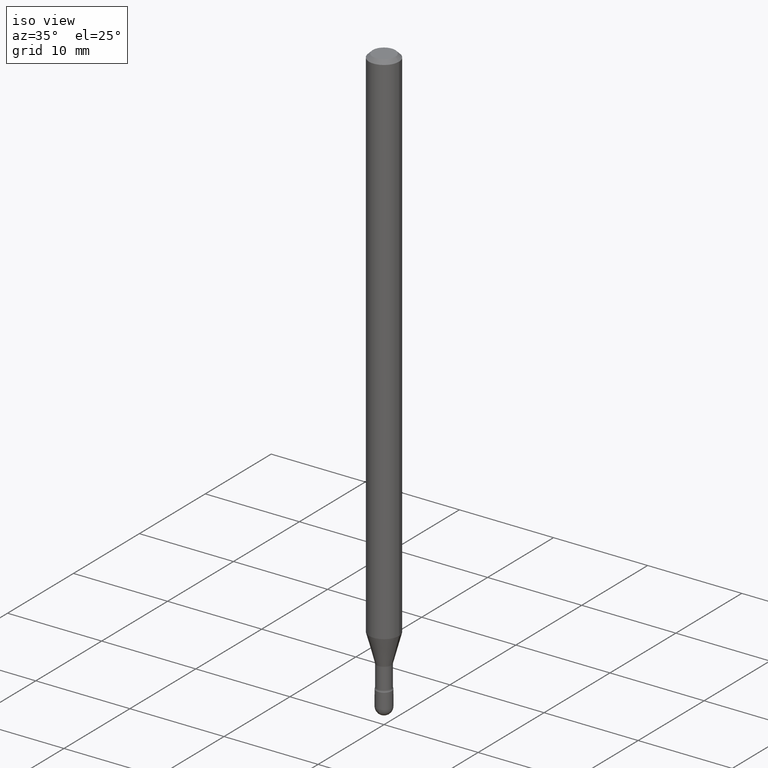
[diagram: clean part render]
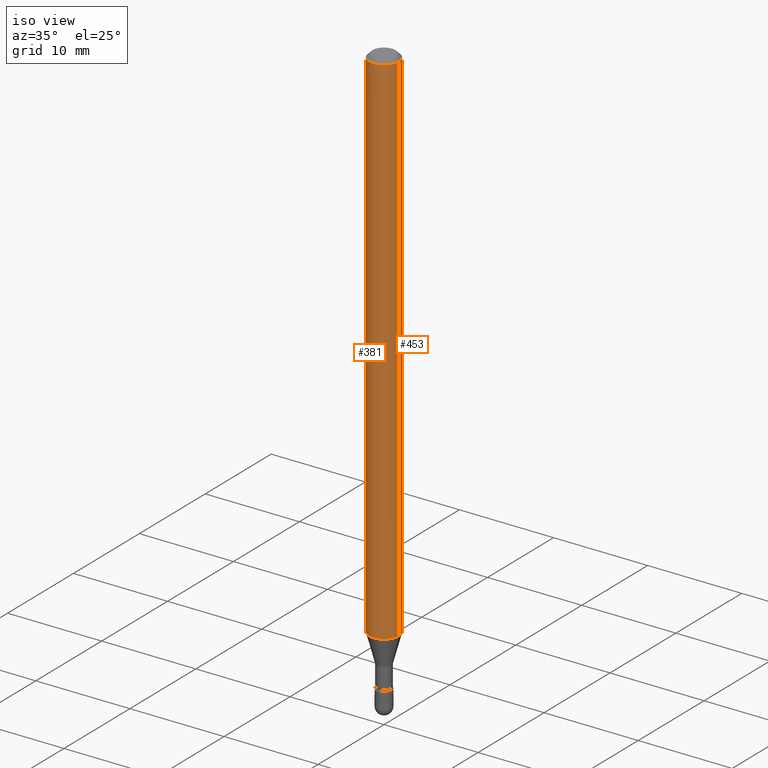
[diagram: same view with one multi-face feature highlighted, each face labeled with its STEP entity id]
A machine part, iso view. The highlighted faces form ONE feature: a constant-radius fillet chain: 2 tangent blend faces with common blend radius 1.5875 mm. The faces share edges in the B-rep.
Their STEP definitions:
[1] entity #453 (Cylinder):
#4 = EDGE_CURVE ( 'NONE', #524, #161, #263, .T. ) ;
#26 = EDGE_CURVE ( 'NONE', #392, #161, #287, .T. ) ;
#31 = ORIENTED_EDGE ( 'NONE', *, *, #4, .T. ) ;
#40 = DIRECTION ( 'NONE',  ( -2.445468806185136597E-29, 3.491481338843145583E-15, 1.000000000000000000 ) ) ;
#57 = AXIS2_PLACEMENT_3D ( 'NONE', #119, #40, #345 ) ;
#74 = CARTESIAN_POINT ( 'NONE',  ( -0.06250000000000000000, -7.187454451463180448E-15, -2.185760976698174485 ) ) ;
#85 = EDGE_CURVE ( 'NONE', #367, #524, #116, .T. ) ;
#96 = DIRECTION ( 'NONE',  ( -2.445468806185136597E-29, 3.491481338843145583E-15, 1.000000000000000000 ) ) ;
#111 = CARTESIAN_POINT ( 'NONE',  ( 0.06250000000000000000, -4.364351673553899931E-16, 4.780733988912490708E-16 ) ) ;
#116 = CIRCLE ( 'NONE', #182, 0.06250000000000000000 ) ;
#119 = CARTESIAN_POINT ( 'NONE',  ( 3.668203209277725232E-31, -5.237222008264747365E-17, -0.01500000000000008271 ) ) ;
#120 = CARTESIAN_POINT ( 'NONE',  ( 0.06250000000000000000, -8.067978828668636311E-15, -2.185760976698174485 ) ) ;
#131 = CARTESIAN_POINT ( 'NONE',  ( -0.06250000000000000000, 4.440892098500642925E-16, 4.780733988912429571E-16 ) ) ;
#137 = ORIENTED_EDGE ( 'NONE', *, *, #504, .F. ) ;
#161 = VERTEX_POINT ( 'NONE', #536 ) ;
#182 = AXIS2_PLACEMENT_3D ( 'NONE', #350, #96, #379 ) ;
#205 = DIRECTION ( 'NONE',  ( -2.445468806185136877E-29, 3.491481338843145188E-15, 1.000000000000000000 ) ) ;
#211 = ORIENTED_EDGE ( 'NONE', *, *, #85, .T. ) ;
#217 = ORIENTED_EDGE ( 'NONE', *, *, #26, .F. ) ;
#228 = DIRECTION ( 'NONE',  ( 1.000000000000000000, -6.982962677686266711E-15, 4.852736867747366207E-29 ) ) ;
#235 = VECTOR ( 'NONE', #353, 39.37007874015748143 ) ;
#251 = CARTESIAN_POINT ( 'NONE',  ( 0.06250000000000000000, -4.888073874380391431E-16, -0.01500000000000008271 ) ) ;
#263 = LINE ( 'NONE', #131, #235 ) ;
#287 = CIRCLE ( 'NONE', #57, 0.06250000000000000000 ) ;
#345 = DIRECTION ( 'NONE',  ( 1.000000000000000000, -6.982962677686266711E-15, 0.000000000000000000 ) ) ;
#350 = CARTESIAN_POINT ( 'NONE',  ( 5.345210286292143874E-29, -7.631543661313244641E-15, -2.185760976698174485 ) ) ;
#353 = DIRECTION ( 'NONE',  ( -2.445468806185136877E-29, 3.491481338843145188E-15, 1.000000000000000000 ) ) ;
#367 = VERTEX_POINT ( 'NONE', #120 ) ;
#379 = DIRECTION ( 'NONE',  ( 1.000000000000000000, -6.982962677686262766E-15, 0.000000000000000000 ) ) ;
#392 = VERTEX_POINT ( 'NONE', #251 ) ;
#410 = LINE ( 'NONE', #111, #440 ) ;
#412 = CARTESIAN_POINT ( 'NONE',  ( -1.169113584055446105E-44, 1.669184350826100908E-30, 4.780733988912460139E-16 ) ) ;
#429 = DIRECTION ( 'NONE',  ( -2.445468806185136597E-29, 3.491481338843145583E-15, 1.000000000000000000 ) ) ;
#432 = AXIS2_PLACEMENT_3D ( 'NONE', #412, #429, #228 ) ;
#440 = VECTOR ( 'NONE', #205, 39.37007874015748143 ) ;
#453 = ADVANCED_FACE ( 'NONE', ( #480 ), #502, .T. ) ;
#480 = FACE_OUTER_BOUND ( 'NONE', #488, .T. ) ;
#488 = EDGE_LOOP ( 'NONE', ( #211, #31, #217, #137 ) ) ;
#502 = CYLINDRICAL_SURFACE ( 'NONE', #432, 0.06250000000000000000 ) ;
#504 = EDGE_CURVE ( 'NONE', #367, #392, #410, .T. ) ;
#524 = VERTEX_POINT ( 'NONE', #74 ) ;
#536 = CARTESIAN_POINT ( 'NONE',  ( -0.06250000000000000000, -3.397868730847883441E-15, -0.01500000000000008271 ) ) ;
[2] entity #381 (Cylinder):
#4 = EDGE_CURVE ( 'NONE', #524, #161, #263, .T. ) ;
#33 = ORIENTED_EDGE ( 'NONE', *, *, #4, .F. ) ;
#72 = EDGE_CURVE ( 'NONE', #161, #392, #411, .T. ) ;
#74 = CARTESIAN_POINT ( 'NONE',  ( -0.06250000000000000000, -7.187454451463180448E-15, -2.185760976698174485 ) ) ;
#76 = DIRECTION ( 'NONE',  ( -2.445468806185136597E-29, 3.491481338843145583E-15, 1.000000000000000000 ) ) ;
#79 = DIRECTION ( 'NONE',  ( 1.000000000000000000, -6.982962677686262766E-15, 0.000000000000000000 ) ) ;
#104 = ORIENTED_EDGE ( 'NONE', *, *, #403, .T. ) ;
#105 = AXIS2_PLACEMENT_3D ( 'NONE', #167, #76, #79 ) ;
#111 = CARTESIAN_POINT ( 'NONE',  ( 0.06250000000000000000, -4.364351673553899931E-16, 4.780733988912490708E-16 ) ) ;
#117 = ORIENTED_EDGE ( 'NONE', *, *, #504, .T. ) ;
#120 = CARTESIAN_POINT ( 'NONE',  ( 0.06250000000000000000, -8.067978828668636311E-15, -2.185760976698174485 ) ) ;
#131 = CARTESIAN_POINT ( 'NONE',  ( -0.06250000000000000000, 4.440892098500642925E-16, 4.780733988912429571E-16 ) ) ;
#148 = AXIS2_PLACEMENT_3D ( 'NONE', #482, #209, #276 ) ;
#157 = ORIENTED_EDGE ( 'NONE', *, *, #72, .F. ) ;
#161 = VERTEX_POINT ( 'NONE', #536 ) ;
#167 = CARTESIAN_POINT ( 'NONE',  ( 5.345210286292143874E-29, -7.631543661313244641E-15, -2.185760976698174485 ) ) ;
#170 = EDGE_LOOP ( 'NONE', ( #33, #104, #117, #157 ) ) ;
#196 = AXIS2_PLACEMENT_3D ( 'NONE', #471, #474, #334 ) ;
#205 = DIRECTION ( 'NONE',  ( -2.445468806185136877E-29, 3.491481338843145188E-15, 1.000000000000000000 ) ) ;
#209 = DIRECTION ( 'NONE',  ( -2.445468806185136597E-29, 3.491481338843145583E-15, 1.000000000000000000 ) ) ;
#235 = VECTOR ( 'NONE', #353, 39.37007874015748143 ) ;
#251 = CARTESIAN_POINT ( 'NONE',  ( 0.06250000000000000000, -4.888073874380391431E-16, -0.01500000000000008271 ) ) ;
#263 = LINE ( 'NONE', #131, #235 ) ;
#276 = DIRECTION ( 'NONE',  ( 1.000000000000000000, -6.982962677686266711E-15, 0.000000000000000000 ) ) ;
#334 = DIRECTION ( 'NONE',  ( 1.000000000000000000, -6.982962677686266711E-15, 4.852736867747366207E-29 ) ) ;
#344 = FACE_OUTER_BOUND ( 'NONE', #170, .T. ) ;
#353 = DIRECTION ( 'NONE',  ( -2.445468806185136877E-29, 3.491481338843145188E-15, 1.000000000000000000 ) ) ;
#367 = VERTEX_POINT ( 'NONE', #120 ) ;
#381 = ADVANCED_FACE ( 'NONE', ( #344 ), #388, .T. ) ;
#388 = CYLINDRICAL_SURFACE ( 'NONE', #196, 0.06250000000000000000 ) ;
#389 = CIRCLE ( 'NONE', #105, 0.06250000000000000000 ) ;
#392 = VERTEX_POINT ( 'NONE', #251 ) ;
#403 = EDGE_CURVE ( 'NONE', #524, #367, #389, .T. ) ;
#410 = LINE ( 'NONE', #111, #440 ) ;
#411 = CIRCLE ( 'NONE', #148, 0.06250000000000000000 ) ;
#440 = VECTOR ( 'NONE', #205, 39.37007874015748143 ) ;
#471 = CARTESIAN_POINT ( 'NONE',  ( -1.169113584055446105E-44, 1.669184350826100908E-30, 4.780733988912460139E-16 ) ) ;
#474 = DIRECTION ( 'NONE',  ( -2.445468806185136597E-29, 3.491481338843145583E-15, 1.000000000000000000 ) ) ;
#482 = CARTESIAN_POINT ( 'NONE',  ( 3.668203209277725232E-31, -5.237222008264747365E-17, -0.01500000000000008271 ) ) ;
#504 = EDGE_CURVE ( 'NONE', #367, #392, #410, .T. ) ;
#524 = VERTEX_POINT ( 'NONE', #74 ) ;
#536 = CARTESIAN_POINT ( 'NONE',  ( -0.06250000000000000000, -3.397868730847883441E-15, -0.01500000000000008271 ) ) ;